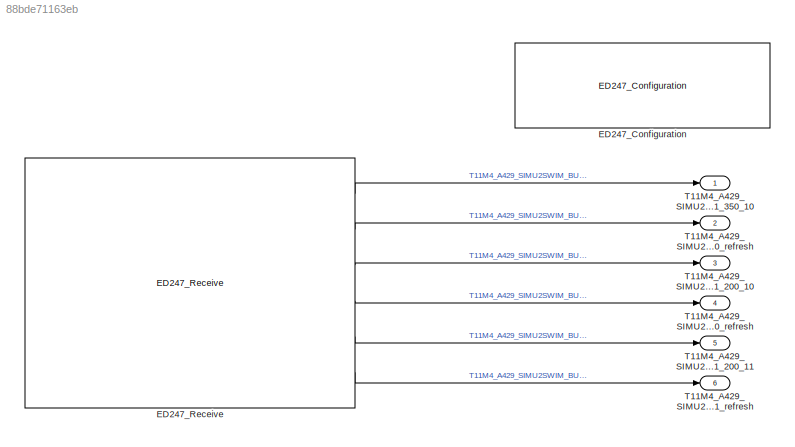
MODEL slx_88bde71163eb
KIND model
CONFIG AbsTol = auto
CONFIG EnableMultiTasking = off
CONFIG FixedStep = auto
CONFIG MaxStep = auto
CONFIG MinStep = auto
CONFIG RelTol = 1e-3
CONFIG SampleTimeConstraint = Unconstrained
CONFIG Solver = VariableStepAuto
CONFIG SolverName = VariableStepAuto
CONFIG StartTime = 0.0
CONFIG StopTime = 10.0
WORKSPACE source: mxarray member
WORKSPACE ED247Configuration: object (value not decoded)
BLOCK [Reference] ED247_Configuration  REF=lib_ed247/ED247_Configuration
  Ports = []
  SourceBlock = lib_ed247/ED247_Configuration
  SourceProductName = Airbus ED247
  SourceType = Configurable block example
BLOCK [Reference] ED247_Receive  REF=lib_ed247/ED247_Receive
  Ports = [0, 6]
  SourceBlock = lib_ed247/ED247_Receive
  SourceProductName = Airbus ED247
  SourceType = ED247 Receive
BLOCK [Outport] T11M4_A429_SIMU2SWIM_BUS_1_200_10
  IconDisplay = Port number
  OutDataTypeStr = uint8
  Port = 3
  PortDimensions = 4
  SampleTime = 0.1
BLOCK [Outport] T11M4_A429_SIMU2SWIM_BUS_1_200_10_refresh
  IconDisplay = Port number
  Port = 4
BLOCK [Outport] T11M4_A429_SIMU2SWIM_BUS_1_200_11
  IconDisplay = Port number
  OutDataTypeStr = uint8
  Port = 5
  PortDimensions = 4
  SampleTime = 0.1
BLOCK [Outport] T11M4_A429_SIMU2SWIM_BUS_1_200_11_refresh
  IconDisplay = Port number
  Port = 6
BLOCK [Outport] T11M4_A429_SIMU2SWIM_BUS_1_350_10
  IconDisplay = Port number
  OutDataTypeStr = uint8
  PortDimensions = 4
  SampleTime = 0.1
BLOCK [Outport] T11M4_A429_SIMU2SWIM_BUS_1_350_10_refresh
  IconDisplay = Port number
  Port = 2
LINE ED247_Receive:1 -> T11M4_A429_SIMU2SWIM_BUS_1_350_10:1
LINE ED247_Receive:2 -> T11M4_A429_SIMU2SWIM_BUS_1_350_10_refresh:1
LINE ED247_Receive:3 -> T11M4_A429_SIMU2SWIM_BUS_1_200_10:1
LINE ED247_Receive:4 -> T11M4_A429_SIMU2SWIM_BUS_1_200_10_refresh:1
LINE ED247_Receive:5 -> T11M4_A429_SIMU2SWIM_BUS_1_200_11:1
LINE ED247_Receive:6 -> T11M4_A429_SIMU2SWIM_BUS_1_200_11_refresh:1
